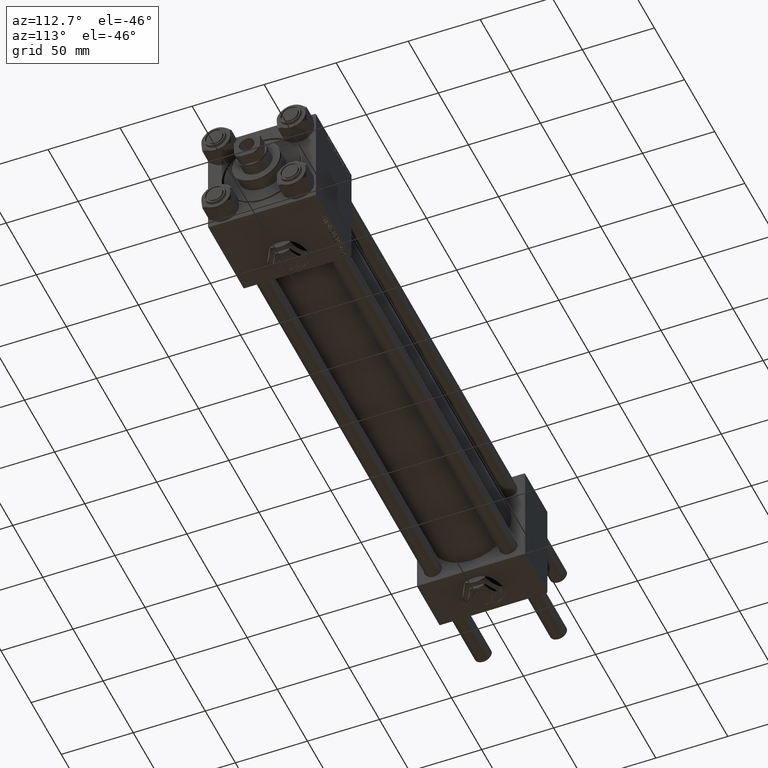
[diagram: clean part render]
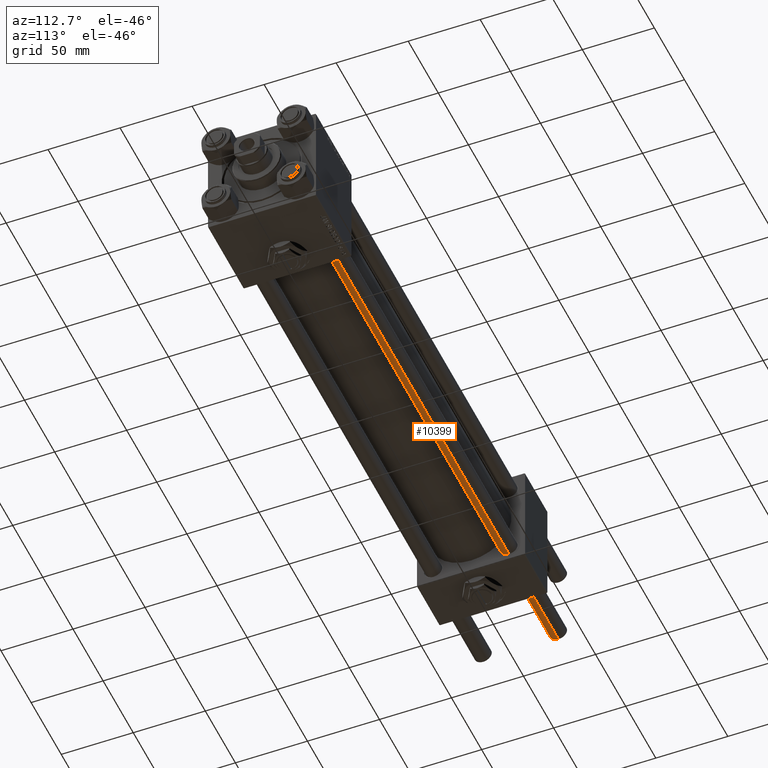
[diagram: same view with one face highlighted and labeled with its STEP entity id]
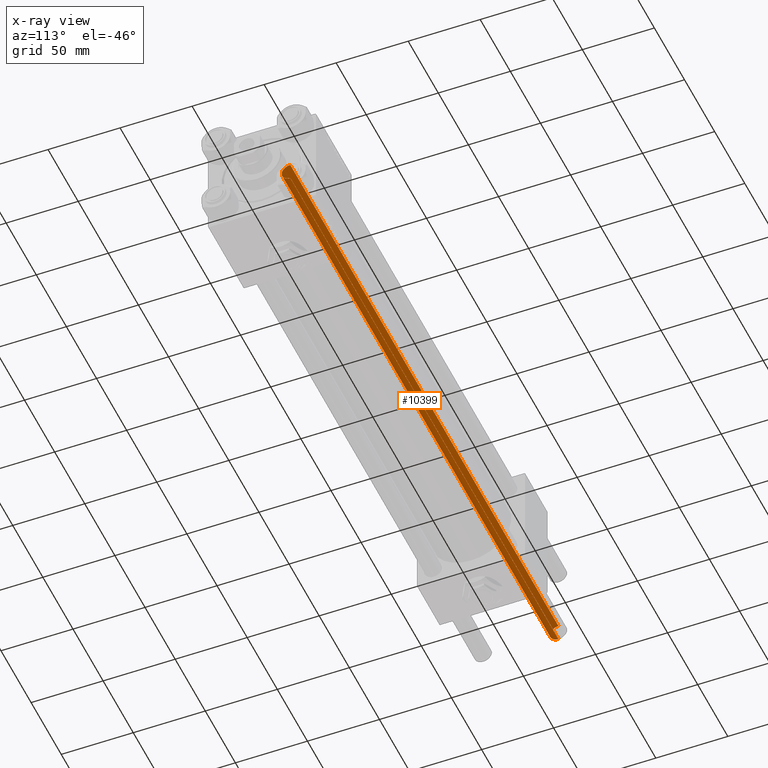
[diagram: x-ray of the same camera — body ghosted, the highlighted face saturated]
A machine part, auxiliary view. The second image highlights one B-rep face of the part: STEP entity #10399.
The next image is the same camera in x-ray: the body ghosted, the highlighted face saturated — about 0% of this face is hidden behind the body in this view.
In plain terms, the highlighted cylindrical surface (edge-blend (fillet) strip) has radius 6 mm, axis along (1, 0, -0).
Its self-contained STEP definition (entity closure, byte-faithful):
#4255 = CIRCLE ( 'NONE', #44412, 6.000000000000000888 ) ;
#5932 = ORIENTED_EDGE ( 'NONE', *, *, #29271, .T. ) ;
#6674 = DIRECTION ( 'NONE',  ( -0.000000000000000000, -0.000000000000000000, -1.000000000000000000 ) ) ;
#7919 = DIRECTION ( 'NONE',  ( -1.000000000000000000, 0.000000000000000000, 0.000000000000000000 ) ) ;
#8997 = LINE ( 'NONE', #13192, #11723 ) ;
#10399 = ADVANCED_FACE ( 'NONE', ( #43801 ), #12373, .T. ) ;
#10589 = CARTESIAN_POINT ( 'NONE',  ( 6.000000000000000888, 7.347880794884119736E-16, 446.0000000000000000 ) ) ;
#11723 = VECTOR ( 'NONE', #29929, 1000.000000000000000 ) ;
#12373 = CYLINDRICAL_SURFACE ( 'NONE', #39172, 6.000000000000000888 ) ;
#13192 = CARTESIAN_POINT ( 'NONE',  ( -6.000000000000000888, 0.000000000000000000, 446.0000000000000000 ) ) ;
#13661 = CARTESIAN_POINT ( 'NONE',  ( 6.000000000000000888, 7.347880794884119736E-16, 0.5000000000003890221 ) ) ;
#15147 = EDGE_CURVE ( 'NONE', #16744, #37323, #8997, .T. ) ;
#15352 = DIRECTION ( 'NONE',  ( 1.000000000000000000, 0.000000000000000000, 0.000000000000000000 ) ) ;
#16744 = VERTEX_POINT ( 'NONE', #27433 ) ;
#17683 = CARTESIAN_POINT ( 'NONE',  ( -6.000000000000000888, 0.000000000000000000, 0.5000000000003890221 ) ) ;
#17691 = ORIENTED_EDGE ( 'NONE', *, *, #33931, .T. ) ;
#18708 = VERTEX_POINT ( 'NONE', #13661 ) ;
#19559 = VERTEX_POINT ( 'NONE', #41482 ) ;
#21546 = EDGE_CURVE ( 'NONE', #19559, #18708, #30499, .T. ) ;
#26617 = ORIENTED_EDGE ( 'NONE', *, *, #21546, .F. ) ;
#26857 = VECTOR ( 'NONE', #6674, 1000.000000000000000 ) ;
#27033 = EDGE_LOOP ( 'NONE', ( #26617, #17691, #44172, #5932 ) ) ;
#27317 = DIRECTION ( 'NONE',  ( -0.000000000000000000, -0.000000000000000000, 1.000000000000000000 ) ) ;
#27433 = CARTESIAN_POINT ( 'NONE',  ( -6.000000000000000888, 0.000000000000000000, 445.5000000000003411 ) ) ;
#29271 = EDGE_CURVE ( 'NONE', #37323, #18708, #4255, .T. ) ;
#29929 = DIRECTION ( 'NONE',  ( -0.000000000000000000, -0.000000000000000000, -1.000000000000000000 ) ) ;
#30499 = LINE ( 'NONE', #10589, #26857 ) ;
#31767 = CARTESIAN_POINT ( 'NONE',  ( 0.000000000000000000, 0.000000000000000000, 0.5000000000003890221 ) ) ;
#31768 = DIRECTION ( 'NONE',  ( -0.000000000000000000, -0.000000000000000000, -1.000000000000000000 ) ) ;
#33931 = EDGE_CURVE ( 'NONE', #19559, #16744, #45403, .T. ) ;
#36221 = DIRECTION ( 'NONE',  ( 1.000000000000000000, 0.000000000000000000, 0.000000000000000000 ) ) ;
#37068 = AXIS2_PLACEMENT_3D ( 'NONE', #50155, #50683, #15352 ) ;
#37323 = VERTEX_POINT ( 'NONE', #17683 ) ;
#39172 = AXIS2_PLACEMENT_3D ( 'NONE', #48226, #31768, #7919 ) ;
#41482 = CARTESIAN_POINT ( 'NONE',  ( 6.000000000000000888, 7.347880794884119736E-16, 445.5000000000003411 ) ) ;
#43801 = FACE_OUTER_BOUND ( 'NONE', #27033, .T. ) ;
#44172 = ORIENTED_EDGE ( 'NONE', *, *, #15147, .T. ) ;
#44412 = AXIS2_PLACEMENT_3D ( 'NONE', #31767, #27317, #36221 ) ;
#45403 = CIRCLE ( 'NONE', #37068, 6.000000000000000888 ) ;
#48226 = CARTESIAN_POINT ( 'NONE',  ( 0.000000000000000000, 0.000000000000000000, 446.0000000000000000 ) ) ;
#50155 = CARTESIAN_POINT ( 'NONE',  ( 0.000000000000000000, 0.000000000000000000, 445.5000000000003411 ) ) ;
#50683 = DIRECTION ( 'NONE',  ( 0.000000000000000000, 0.000000000000000000, -1.000000000000000000 ) ) ;